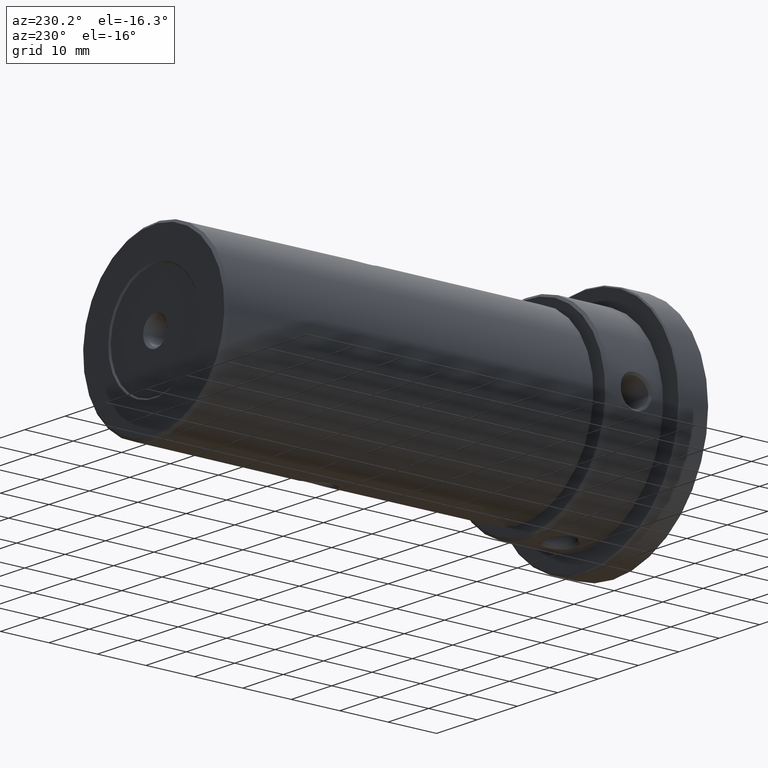
[diagram: clean part render]
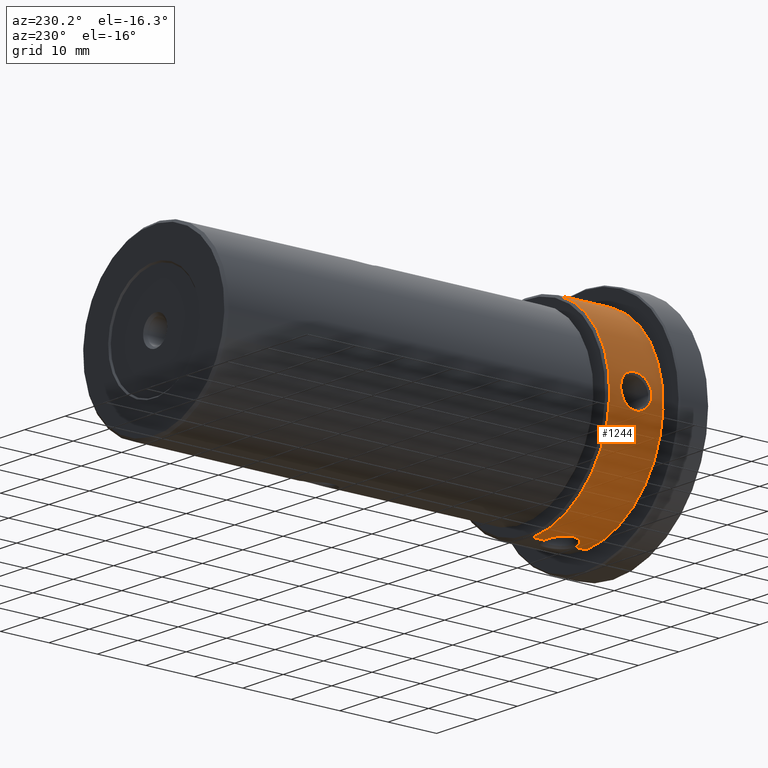
[diagram: same view with one face highlighted and labeled with its STEP entity id]
A machine part, auxiliary view. The second image highlights one B-rep face of the part: STEP entity #1244.
In plain terms, the highlighted cylindrical surface (partial cylindrical patch) has radius 20 mm, axis along (-0, -1, 0).
Its self-contained STEP definition (entity closure, byte-faithful):
#21 = VERTEX_POINT ( 'NONE', #7841 ) ;
#43 = DIRECTION ( 'NONE',  ( -0.000000000000000000, -1.000000000000000000, -0.000000000000000000 ) ) ;
#46 = CARTESIAN_POINT ( 'NONE',  ( -1.158678657098529685, 3.006006604724103859, 19.96665519058064930 ) ) ;
#146 = CARTESIAN_POINT ( 'NONE',  ( -19.72870111304542462, 0.2056933735624228432, 3.283040120788532690 ) ) ;
#206 = CARTESIAN_POINT ( 'NONE',  ( -19.98541069512018353, 3.126736363203132196, 0.8608556256249703109 ) ) ;
#352 = CARTESIAN_POINT ( 'NONE',  ( -2.005386497175610572, -2.550789772819477719, -19.90001605255461214 ) ) ;
#471 = CARTESIAN_POINT ( 'NONE',  ( -19.77523605626856451, -1.329136503091838728, 2.990279165139892559 ) ) ;
#585 = CARTESIAN_POINT ( 'NONE',  ( -19.80499380801463971, -1.700448300313925243, 2.786727627169693911 ) ) ;
#627 = LINE ( 'NONE', #11676, #8683 ) ;
#829 = CARTESIAN_POINT ( 'NONE',  ( -19.99645140533944598, -3.189857657494025389, -0.4317793585944070256 ) ) ;
#868 = EDGE_CURVE ( 'NONE', #3960, #5688, #4130, .T. ) ;
#887 = CARTESIAN_POINT ( 'NONE',  ( -0.4289355146931013163, -3.190274870758774473, 19.99652120331825955 ) ) ;
#894 = CARTESIAN_POINT ( 'NONE',  ( -19.97223225383176981, -3.041136860663240515, -1.058605149291530489 ) ) ;
#962 = B_SPLINE_CURVE_WITH_KNOTS ( 'NONE', 3,
 ( #9366, #9121, #887, #6588, #5482, #4444, #4563, #11257, #1683, #4623, #11196, #2848, #11070, #9243, #5606, #10343 ),
 .UNSPECIFIED., .F., .F.,
 ( 4, 2, 2, 2, 2, 2, 2, 4 ),
 ( 0.2499708488329155376, 0.2812244927288010676, 0.3124781366246866532, 0.3437317805205721832, 0.3749854244164577688, 0.4062390683123432988, 0.4374927122082288289, 0.5000000000000000000 ),
 .UNSPECIFIED. ) ;
#970 = CARTESIAN_POINT ( 'NONE',  ( -1.643899664702022534, 2.787212069719789742, 19.93313604044739762 ) ) ;
#1007 = CARTESIAN_POINT ( 'NONE',  ( -19.72873467711491458, 0.2111624718507606191, -3.282838412106752202 ) ) ;
#1066 = CARTESIAN_POINT ( 'NONE',  ( -19.84719939977778580, 2.122882297813984742, -2.472256534739587064 ) ) ;
#1090 = CARTESIAN_POINT ( 'NONE',  ( -3.177027728197483913, 0.8353448745015051857, -19.74609608644560765 ) ) ;
#1130 = CARTESIAN_POINT ( 'NONE',  ( -19.93262397682579845, 2.781731480877083662, 1.643053472561138983 ) ) ;
#1154 = CARTESIAN_POINT ( 'NONE',  ( -0.7462050190063407307, 3.128526936282405302, 19.98635200496235953 ) ) ;
#1177 = CARTESIAN_POINT ( 'NONE',  ( 2.528436336588759464E-13, 3.210814769336804542, 20.00000000172522263 ) ) ;
#1214 = CARTESIAN_POINT ( 'NONE',  ( -0.2157311954545949872, 3.210814377698899325, -20.00000000000000711 ) ) ;
#1244 = ADVANCED_FACE ( 'NONE', ( #6016, #4178 ), #6831, .T. ) ;
#1274 = CARTESIAN_POINT ( 'NONE',  ( -2.473904711845426263, 2.121122430217057264, -19.84699809542612314 ) ) ;
#1333 = CARTESIAN_POINT ( 'NONE',  ( -2.003044647226584374, 2.552492708573026459, -19.90024663969310481 ) ) ;
#1360 = EDGE_LOOP ( 'NONE', ( #7401, #10213 ) ) ;
#1395 = CARTESIAN_POINT ( 'NONE',  ( -19.72880273281258923, -0.4221556516176297458, 3.282429420431459910 ) ) ;
#1396 = EDGE_CURVE ( 'NONE', #21, #5086, #9201, .T. ) ;
#1495 = ORIENTED_EDGE ( 'NONE', *, *, #1612, .T. ) ;
#1550 = CARTESIAN_POINT ( 'NONE',  ( 0.000000000000000000, 5.499999999999996447, -20.00000000000000000 ) ) ;
#1612 = EDGE_CURVE ( 'NONE', #9495, #8500, #4493, .T. ) ;
#1631 = CARTESIAN_POINT ( 'NONE',  ( -19.79390807436707789, -1.616698761352463931, -2.868590979478604641 ) ) ;
#1678 = CARTESIAN_POINT ( 'NONE',  ( -3.282836554002883656, 0.003589634830924833681, 19.72873498630113076 ) ) ;
#1683 = CARTESIAN_POINT ( 'NONE',  ( -2.169019926329547321, -2.419216049442036276, 19.88261984067980492 ) ) ;
#1870 = CARTESIAN_POINT ( 'NONE',  ( -19.72873461293177755, -0.2098033368892135708, -3.282838797825419874 ) ) ;
#1883 = CARTESIAN_POINT ( 'NONE',  ( -2.472033385874992550, 2.123040080503999949, 19.84722224773671684 ) ) ;
#1974 = ORIENTED_EDGE ( 'NONE', *, *, #11302, .T. ) ;
#1984 = CARTESIAN_POINT ( 'NONE',  ( -19.78157231066153088, 1.426556753777337150, 2.948973793163839119 ) ) ;
#2012 = CARTESIAN_POINT ( 'NONE',  ( -3.178086759260852823, -0.8318619006416451134, -19.74592549026953847 ) ) ;
#2023 = DIRECTION ( 'NONE',  ( 0.000000000000000000, 0.000000000000000000, 1.000000000000000000 ) ) ;
#2044 = CARTESIAN_POINT ( 'NONE',  ( -19.72873498630114142, -0.003589634830928299658, 3.282836554002841911 ) ) ;
#2070 = CARTESIAN_POINT ( 'NONE',  ( -0.8548172235046693768, -3.107221392428660689, -19.98284456748056925 ) ) ;
#2082 = DIRECTION ( 'NONE',  ( -0.000000000000000000, 1.000000000000000000, -0.000000000000000000 ) ) ;
#2102 = CARTESIAN_POINT ( 'NONE',  ( -19.82937915709381116, 1.959213789484572255, -2.609622977981755021 ) ) ;
#2127 = CARTESIAN_POINT ( 'NONE',  ( -3.282951769846691903, -0.2096741267826929822, -19.72871581452127643 ) ) ;
#2139 = EDGE_CURVE ( 'NONE', #21, #7084, #5690, .T. ) ;
#2380 = VERTEX_POINT ( 'NONE', #11396 ) ;
#2558 = CARTESIAN_POINT ( 'NONE',  ( -19.98211626822888931, -3.102615619013571191, -0.8519011128570723734 ) ) ;
#2677 = CARTESIAN_POINT ( 'NONE',  ( -19.76241098728505463, -1.132063641271321863, -3.073896169544034773 ) ) ;
#2794 = CARTESIAN_POINT ( 'NONE',  ( -19.94793521833227601, -2.885495965592914658, 1.456004418445208115 ) ) ;
#2843 = CARTESIAN_POINT ( 'NONE',  ( -19.73237162064967620, 0.4235559177282980925, -3.261183320116648687 ) ) ;
#2848 = CARTESIAN_POINT ( 'NONE',  ( -2.848717079647677508, -1.609521469722601683, 19.79644808863714545 ) ) ;
#2992 = CARTESIAN_POINT ( 'NONE',  ( -0.8493519092969397111, 3.103293778019093896, 19.98222539444758894 ) ) ;
#3006 = CARTESIAN_POINT ( 'NONE',  ( -19.72873498630114142, -0.003589634830928299658, 3.282836554002841911 ) ) ;
#3024 = CARTESIAN_POINT ( 'NONE',  ( -19.94805301913826767, 2.886255173708564659, -1.454135040344656238 ) ) ;
#3105 = EDGE_CURVE ( 'NONE', #3578, #7340, #962, .T. ) ;
#3106 = CARTESIAN_POINT ( 'NONE',  ( -1.735818371137300531, 2.727269810196779609, -19.92473175797537621 ) ) ;
#3166 = CARTESIAN_POINT ( 'NONE',  ( -2.172961773870679014, -2.415835170282897071, -19.88218718433242316 ) ) ;
#3180 = CARTESIAN_POINT ( 'NONE',  ( 0.000000000000000000, 5.499999999999996447, 0.000000000000000000 ) ) ;
#3223 = CARTESIAN_POINT ( 'NONE',  ( -0.2161508172474879974, 3.210814277818609952, 20.00000000000001066 ) ) ;
#3230 = LINE ( 'NONE', #11461, #10147 ) ;
#3578 = VERTEX_POINT ( 'NONE', #11674 ) ;
#3580 = CARTESIAN_POINT ( 'NONE',  ( -19.82964123136623513, -1.961760263111397506, 2.607652401954195565 ) ) ;
#3641 = CARTESIAN_POINT ( 'NONE',  ( -19.90008765280001413, -2.551345600791037338, -2.004736211117988720 ) ) ;
#3653 = CARTESIAN_POINT ( 'NONE',  ( -2.847679392390946695, 1.611409293290192890, 19.79660170210748404 ) ) ;
#3756 = CARTESIAN_POINT ( 'NONE',  ( -19.98286610281969544, 3.107354172728777453, -0.8544976948430212937 ) ) ;
#3779 = CARTESIAN_POINT ( 'NONE',  ( -1.056291764045962145, 3.041903122886042254, 19.97235534656693545 ) ) ;
#3939 = CARTESIAN_POINT ( 'NONE',  ( -19.92468484549490171, 2.726941661166282227, 1.736354336784729391 ) ) ;
#3960 = VERTEX_POINT ( 'NONE', #3006 ) ;
#3966 = CARTESIAN_POINT ( 'NONE',  ( -0.4317656602988742542, -3.189910101814636967, -19.99645888421934004 ) ) ;
#4130 = B_SPLINE_CURVE_WITH_KNOTS ( 'NONE', 3,
 ( #6106, #1395, #8885, #471, #5250, #11811, #585, #3580, #10960, #11931, #9312, #7220, #2794, #6288, #6407, #9249, #829, #10169, #2558, #894, #5550, #7470, #10054, #3641, #4694, #7342, #1631, #2677, #4452, #5371, #11076, #10227, #1870, #9187 ),
 .UNSPECIFIED., .F., .F.,
 ( 4, 2, 2, 2, 2, 2, 2, 2, 2, 2, 2, 2, 2, 2, 2, 2, 4 ),
 ( 0.5000000000000000000, 0.5624999999999998890, 0.5781249999999997780, 0.5937499999999997780, 0.6249999999999997780, 0.6562499999999998890, 0.6874999999999998890, 0.7500000000000000000, 0.7812500000000000000, 0.7968750000000000000, 0.8125000000000000000, 0.8437500000000000000, 0.8750000000000000000, 0.9375000000000000000, 0.9531250000000000000, 0.9687500000000000000, 1.000000000000000000 ),
 .UNSPECIFIED. ) ;
#4144 = CARTESIAN_POINT ( 'NONE',  ( -1.063453189124474507, -3.044943168811764522, -19.97269466904537794 ) ) ;
#4178 = FACE_BOUND ( 'NONE', #1360, .T. ) ;
#4444 = CARTESIAN_POINT ( 'NONE',  ( -1.454815775733482752, -2.885942971772348375, 19.94800447265119203 ) ) ;
#4447 = EDGE_CURVE ( 'NONE', #2380, #9495, #7545, .T. ) ;
#4452 = CARTESIAN_POINT ( 'NONE',  ( -19.75678944974790241, -1.034368637843978922, -3.109708313230385990 ) ) ;
#4493 = CIRCLE ( 'NONE', #6055, 20.00000000000000000 ) ;
#4563 = CARTESIAN_POINT ( 'NONE',  ( -1.645415506624138491, -2.786413167082924858, 19.93301667905650376 ) ) ;
#4584 = EDGE_CURVE ( 'NONE', #7340, #7084, #10538, .T. ) ;
#4619 = CARTESIAN_POINT ( 'NONE',  ( -20.00000644627997914, 3.210849722074992307, -0.2137411082782307292 ) ) ;
#4623 = CARTESIAN_POINT ( 'NONE',  ( -2.471718675475199856, -2.123415629002887162, 19.84726242984446998 ) ) ;
#4639 = CARTESIAN_POINT ( 'NONE',  ( 2.449293598294706513E-15, 6.000000000000000000, 20.00000000000000000 ) ) ;
#4694 = CARTESIAN_POINT ( 'NONE',  ( -19.88230362061188217, -2.416732346344130811, -2.171894010933923980 ) ) ;
#4746 = CARTESIAN_POINT ( 'NONE',  ( -19.95420609216780150, 2.925860746797480427, 1.356287689833137300 ) ) ;
#4806 = CARTESIAN_POINT ( 'NONE',  ( -19.94740817882772532, 2.881321743136513458, 1.452594321365257679 ) ) ;
#4831 = CARTESIAN_POINT ( 'NONE',  ( -1.454321303977383684, 2.880494184385846701, -19.94728285857307881 ) ) ;
#4865 = CARTESIAN_POINT ( 'NONE',  ( -19.97296534795573208, 3.046616977456645614, -1.058292577347704322 ) ) ;
#4890 = CARTESIAN_POINT ( 'NONE',  ( -0.4304629198743657459, 3.190009224402950316, 19.99647607107877789 ) ) ;
#4948 = CARTESIAN_POINT ( 'NONE',  ( -2.475072919235656421, -2.119654999187190469, -19.84684217068302914 ) ) ;
#4959 = B_SPLINE_CURVE_WITH_KNOTS ( 'NONE', 3,
 ( #8077, #1007, #2843, #6516, #9361, #5786, #9604, #2102, #1066, #6582, #8503, #9544, #3024, #4865, #3756, #11429, #4619, #10276, #206, #4746, #4806, #1130, #3939, #8376, #8623, #9425, #8559, #10514, #1984, #10338, #6712, #11191, #146, #2044 ),
 .UNSPECIFIED., .F., .F.,
 ( 4, 2, 2, 2, 2, 2, 2, 2, 2, 2, 2, 2, 2, 2, 2, 2, 4 ),
 ( 0.000000000000000000, 0.03124999999999995143, 0.06249999999999990286, 0.09374999999999986122, 0.1249999999999998057, 0.1562499999999997502, 0.1874999999999997224, 0.2187499999999997224, 0.2499999999999997224, 0.3124999999999996669, 0.3281249999999997224, 0.3437499999999996669, 0.3749999999999997224, 0.4062499999999998335, 0.4374999999999998890, 0.4687499999999999445, 0.5000000000000000000 ),
 .UNSPECIFIED. ) ;
#5010 = CARTESIAN_POINT ( 'NONE',  ( -3.240113370310231833, 0.5268901165830771616, -19.73580804800645438 ) ) ;
#5069 = CARTESIAN_POINT ( 'NONE',  ( -2.847213650360155057, 1.611894744925568501, -19.79666038103761494 ) ) ;
#5086 = VERTEX_POINT ( 'NONE', #1550 ) ;
#5250 = CARTESIAN_POINT ( 'NONE',  ( -19.78209360916186554, -1.423154493285935906, 2.944728968417123838 ) ) ;
#5371 = CARTESIAN_POINT ( 'NONE',  ( -19.74678119765756890, -0.8317059815842607895, -3.172640459756129516 ) ) ;
#5482 = CARTESIAN_POINT ( 'NONE',  ( -1.058755611226214866, -3.046465704494233151, 19.97294189492203387 ) ) ;
#5550 = CARTESIAN_POINT ( 'NONE',  ( -19.96650705543705229, -3.005061850403551560, -1.161213496109318788 ) ) ;
#5563 = CARTESIAN_POINT ( 'NONE',  ( -2.001950075005967555, 2.553383045454071798, 19.90036468037141049 ) ) ;
#5606 = CARTESIAN_POINT ( 'NONE',  ( -3.283243735051231571, -0.4150251885518185802, 19.72866723188959170 ) ) ;
#5625 = CARTESIAN_POINT ( 'NONE',  ( -2.169590774469934757, 2.418725991896002459, 19.88255657311883695 ) ) ;
#5688 = VERTEX_POINT ( 'NONE', #6945 ) ;
#5690 = LINE ( 'NONE', #4639, #9967 ) ;
#5753 = CARTESIAN_POINT ( 'NONE',  ( -2.951493054370621927, -1.421276429248823803, -19.78119209682132151 ) ) ;
#5782 = CARTESIAN_POINT ( 'NONE',  ( 0.000000000000000000, 6.000000000000000000, 0.000000000000000000 ) ) ;
#5786 = CARTESIAN_POINT ( 'NONE',  ( -19.78145698359135451, 1.425006937884932379, -2.949738235017527188 ) ) ;
#5870 = CARTESIAN_POINT ( 'NONE',  ( -2.850026662224084628, -1.607432073332376810, -19.79626288670249323 ) ) ;
#5899 = DIRECTION ( 'NONE',  ( -0.000000000000000000, -1.000000000000000000, -0.000000000000000000 ) ) ;
#5925 = CARTESIAN_POINT ( 'NONE',  ( -3.256229307588821342, 0.4214790568076811628, -19.73314691802544374 ) ) ;
#5983 = CARTESIAN_POINT ( 'NONE',  ( -1.058531451067987517, 3.046565061365889893, -19.97295893071096984 ) ) ;
#6016 = FACE_OUTER_BOUND ( 'NONE', #7717, .T. ) ;
#6055 = AXIS2_PLACEMENT_3D ( 'NONE', #10496, #2082, #10551 ) ;
#6106 = CARTESIAN_POINT ( 'NONE',  ( -19.72873498630114142, -0.003589634830928299658, 3.282836554002841911 ) ) ;
#6276 = CARTESIAN_POINT ( 'NONE',  ( 0.000000000000000000, -5.500000000000006217, -20.00000000000000000 ) ) ;
#6288 = CARTESIAN_POINT ( 'NONE',  ( -19.98565426600576700, -3.128297963808362336, 0.8566778419787017818 ) ) ;
#6407 = CARTESIAN_POINT ( 'NONE',  ( -20.00004783158570376, -3.211097968232580868, 0.4290358298319180697 ) ) ;
#6516 = CARTESIAN_POINT ( 'NONE',  ( -19.74605402600659687, 0.8343868422039106836, -3.177287652205260216 ) ) ;
#6582 = CARTESIAN_POINT ( 'NONE',  ( -19.88267671503622225, 2.419697900833119419, -2.168534766486040155 ) ) ;
#6588 = CARTESIAN_POINT ( 'NONE',  ( -0.8522552653627986086, -3.107908260091315711, 19.98295540887740884 ) ) ;
#6680 = CARTESIAN_POINT ( 'NONE',  ( -3.282781247231202570, 0.1065994962668947860, -19.72874418928248019 ) ) ;
#6712 = CARTESIAN_POINT ( 'NONE',  ( -19.74599425326837476, 0.8335622238433175735, 3.177662765339251294 ) ) ;
#6742 = CARTESIAN_POINT ( 'NONE',  ( -3.262039743590630980, -0.4179469571097891856, -19.73223012302209511 ) ) ;
#6782 = ORIENTED_EDGE ( 'NONE', *, *, #3105, .T. ) ;
#6799 = CARTESIAN_POINT ( 'NONE',  ( -3.115181304869874435, 1.034778177282145606, -19.75607885490965643 ) ) ;
#6806 = DIRECTION ( 'NONE',  ( -0.000000000000000000, -1.000000000000000000, -0.000000000000000000 ) ) ;
#6831 = CYLINDRICAL_SURFACE ( 'NONE', #10951, 20.00000000000000000 ) ;
#6917 = CARTESIAN_POINT ( 'NONE',  ( -2.169137381556429656, 2.419257043399334783, -19.88261504287285319 ) ) ;
#6945 = CARTESIAN_POINT ( 'NONE',  ( -19.72873464491972939, 5.082197683525802034E-17, -3.282838605588759062 ) ) ;
#7002 = ORIENTED_EDGE ( 'NONE', *, *, #4447, .T. ) ;
#7084 = VERTEX_POINT ( 'NONE', #1177 ) ;
#7182 = VECTOR ( 'NONE', #10297, 1000.000000000000000 ) ;
#7220 = CARTESIAN_POINT ( 'NONE',  ( -19.93312469778006957, -2.787099344615420637, 1.643909942856345285 ) ) ;
#7340 = VERTEX_POINT ( 'NONE', #1678 ) ;
#7342 = CARTESIAN_POINT ( 'NONE',  ( -19.82932171882884020, -1.972995465354024702, -2.624973066317353165 ) ) ;
#7401 = ORIENTED_EDGE ( 'NONE', *, *, #7487, .T. ) ;
#7470 = CARTESIAN_POINT ( 'NONE',  ( -19.94777545471344382, -2.884433045962102593, -1.457922330505737829 ) ) ;
#7487 = EDGE_CURVE ( 'NONE', #5688, #3960, #4959, .T. ) ;
#7530 = VERTEX_POINT ( 'NONE', #11376 ) ;
#7545 = LINE ( 'NONE', #11215, #7182 ) ;
#7594 = ORIENTED_EDGE ( 'NONE', *, *, #4584, .T. ) ;
#7674 = CARTESIAN_POINT ( 'NONE',  ( -0.8546834062709159907, 3.107282672630588216, -19.98285351432228296 ) ) ;
#7717 = EDGE_LOOP ( 'NONE', ( #9977, #10154, #1974, #9853, #7002, #1495, #9796, #6782, #7594 ) ) ;
#7734 = CARTESIAN_POINT ( 'NONE',  ( -1.647922219500129293, -2.784927057243421711, -19.93280126458555301 ) ) ;
#7788 = CARTESIAN_POINT ( 'NONE',  ( 2.528436336588759464E-13, 3.210814769336804542, 20.00000000172522263 ) ) ;
#7841 = CARTESIAN_POINT ( 'NONE',  ( 2.449293598294706513E-15, 5.499999999999996447, 20.00000000000000000 ) ) ;
#8077 = CARTESIAN_POINT ( 'NONE',  ( -19.72873464491972939, 5.082197683525802034E-17, -3.282838605588759062 ) ) ;
#8338 = CARTESIAN_POINT ( 'NONE',  ( -3.282429594890635904, 0.4219762900690612328, 19.72880270378280088 ) ) ;
#8376 = CARTESIAN_POINT ( 'NONE',  ( -19.90020613797571158, 2.552190118983589162, 2.003438535801464582 ) ) ;
#8402 = CARTESIAN_POINT ( 'NONE',  ( -3.282836554002883656, 0.003589634830924833681, 19.72873498630113076 ) ) ;
#8467 = CARTESIAN_POINT ( 'NONE',  ( -1.455917222464859773, 2.885416709885729958, 19.94792540494267641 ) ) ;
#8500 = VERTEX_POINT ( 'NONE', #10345 ) ;
#8503 = CARTESIAN_POINT ( 'NONE',  ( -19.90022740704959503, 2.552352788094713887, -2.003269558863657984 ) ) ;
#8559 = CARTESIAN_POINT ( 'NONE',  ( -19.82925945945217450, 1.958047067866057978, 2.610528527949259825 ) ) ;
#8588 = CARTESIAN_POINT ( 'NONE',  ( -2.609557995815894316, 1.959266530942890272, -19.82938715339974323 ) ) ;
#8623 = CARTESIAN_POINT ( 'NONE',  ( -19.88272390286786973, 2.420099909786423531, 2.168143128879855830 ) ) ;
#8650 = CARTESIAN_POINT ( 'NONE',  ( -1.386390959549365907E-14, 3.210814762702384861, -20.00000000000000000 ) ) ;
#8683 = VECTOR ( 'NONE', #9170, 1000.000000000000000 ) ;
#8706 = CARTESIAN_POINT ( 'NONE',  ( -0.2155114385539773636, -3.210815185058498500, -20.00000000000000355 ) ) ;
#8825 = CARTESIAN_POINT ( 'NONE',  ( -3.115370270799765695, -1.033886459029130567, -19.75604565942186852 ) ) ;
#8842 = DIRECTION ( 'NONE',  ( 0.000000000000000000, -1.000000000000000000, 0.000000000000000000 ) ) ;
#8885 = CARTESIAN_POINT ( 'NONE',  ( -19.74370945037773240, -0.8453354926248912715, 3.195876437675758908 ) ) ;
#9121 = CARTESIAN_POINT ( 'NONE',  ( -0.2152588734069053877, -3.210818106283897411, 20.00000000000000355 ) ) ;
#9170 = DIRECTION ( 'NONE',  ( -0.000000000000000000, -1.000000000000000000, -0.000000000000000000 ) ) ;
#9187 = CARTESIAN_POINT ( 'NONE',  ( -19.72873464491972939, 5.082197683525802034E-17, -3.282838605588759062 ) ) ;
#9200 = EDGE_CURVE ( 'NONE', #3578, #8500, #627, .T. ) ;
#9201 = CIRCLE ( 'NONE', #11362, 20.00000000000000000 ) ;
#9243 = CARTESIAN_POINT ( 'NONE',  ( -3.196658197545173774, -0.8431018416383337932, 19.74358522972536889 ) ) ;
#9249 = CARTESIAN_POINT ( 'NONE',  ( -19.99997589873214920, -3.210672054760611793, -0.2178538555592763881 ) ) ;
#9312 = CARTESIAN_POINT ( 'NONE',  ( -19.90058672311920063, -2.554998944908394076, 1.999637015331402701 ) ) ;
#9361 = CARTESIAN_POINT ( 'NONE',  ( -19.75609315249851861, 1.034963573952576210, -3.115088987268344045 ) ) ;
#9366 = CARTESIAN_POINT ( 'NONE',  ( -8.972218760219603006E-14, -3.210814757519488527, 19.99999999999141664 ) ) ;
#9425 = CARTESIAN_POINT ( 'NONE',  ( -19.84710889918838816, 2.122117896554447380, 2.473018958426932201 ) ) ;
#9495 = VERTEX_POINT ( 'NONE', #6276 ) ;
#9544 = CARTESIAN_POINT ( 'NONE',  ( -19.93294059001894425, 2.785867895234459546, -1.646213598696455227 ) ) ;
#9604 = CARTESIAN_POINT ( 'NONE',  ( -19.79662546921035471, 1.611492055952627345, -2.847460249908464913 ) ) ;
#9628 = CARTESIAN_POINT ( 'NONE',  ( -6.033831151956498366E-15, -3.210814758110483336, -19.99999999993138289 ) ) ;
#9751 = CARTESIAN_POINT ( 'NONE',  ( -1.356352007453565101, 2.925845898669065193, -19.95420265387892300 ) ) ;
#9796 = ORIENTED_EDGE ( 'NONE', *, *, #9200, .F. ) ;
#9853 = ORIENTED_EDGE ( 'NONE', *, *, #11641, .T. ) ;
#9967 = VECTOR ( 'NONE', #43, 1000.000000000000000 ) ;
#9977 = ORIENTED_EDGE ( 'NONE', *, *, #2139, .F. ) ;
#10054 = CARTESIAN_POINT ( 'NONE',  ( -19.93297195992941084, -2.786101374374414519, -1.645929740286447229 ) ) ;
#10147 = VECTOR ( 'NONE', #6806, 1000.000000000000000 ) ;
#10154 = ORIENTED_EDGE ( 'NONE', *, *, #1396, .T. ) ;
#10169 = CARTESIAN_POINT ( 'NONE',  ( -19.98628399507160935, -3.128114863111315813, -0.7480492119485051550 ) ) ;
#10213 = ORIENTED_EDGE ( 'NONE', *, *, #868, .T. ) ;
#10227 = CARTESIAN_POINT ( 'NONE',  ( -19.73226488625647690, -0.4191618436438083184, -3.261828024398366388 ) ) ;
#10276 = CARTESIAN_POINT ( 'NONE',  ( -19.99998708022929961, 3.210744681817979007, 0.4292892277898058273 ) ) ;
#10297 = DIRECTION ( 'NONE',  ( -0.000000000000000000, -1.000000000000000000, -0.000000000000000000 ) ) ;
#10338 = CARTESIAN_POINT ( 'NONE',  ( -19.75611551355718021, 1.035529787960895565, 3.114955750838736659 ) ) ;
#10343 = CARTESIAN_POINT ( 'NONE',  ( -3.282836554002883656, 0.003589634830924833681, 19.72873498630113076 ) ) ;
#10345 = CARTESIAN_POINT ( 'NONE',  ( 2.449293598294706513E-15, -5.500000000000006217, 20.00000000000000000 ) ) ;
#10361 = CARTESIAN_POINT ( 'NONE',  ( -2.607319933970073667, 1.962341394562628016, 19.82968985223053693 ) ) ;
#10485 = CARTESIAN_POINT ( 'NONE',  ( -2.610003328609852513, -1.958961813293665477, -19.82933581538899404 ) ) ;
#10496 = CARTESIAN_POINT ( 'NONE',  ( 0.000000000000000000, -5.500000000000006217, 0.000000000000000000 ) ) ;
#10514 = CARTESIAN_POINT ( 'NONE',  ( -19.79651857101796963, 1.610252450311780548, 2.848199847772460380 ) ) ;
#10538 = B_SPLINE_CURVE_WITH_KNOTS ( 'NONE', 3,
 ( #8402, #8338, #11155, #12062, #3653, #10361, #1883, #5625, #5563, #970, #8467, #46, #3779, #2992, #1154, #4890, #3223, #7788 ),
 .UNSPECIFIED., .F., .F.,
 ( 4, 2, 2, 2, 2, 2, 2, 2, 4 ),
 ( 0.5000000000000000000, 0.5624732178757451129, 0.5937098268136177248, 0.6249464357514903368, 0.6561830446893629487, 0.6874196536272355607, 0.7030379580961718666, 0.7186562625651082836, 0.7498928715029808956 ),
 .UNSPECIFIED. ) ;
#10541 = CARTESIAN_POINT ( 'NONE',  ( -2.949709688411791486, 1.425041831352378274, -19.78146149903258788 ) ) ;
#10551 = DIRECTION ( 'NONE',  ( 0.000000000000000000, 0.000000000000000000, 1.000000000000000000 ) ) ;
#10598 = CARTESIAN_POINT ( 'NONE',  ( -1.644993786217168408, 2.780639870281185644, -19.93246445722235904 ) ) ;
#10659 = CARTESIAN_POINT ( 'NONE',  ( -0.4310236729923728749, 3.190020017193234469, -19.99647811223610461 ) ) ;
#10691 = DIRECTION ( 'NONE',  ( 0.000000000000000000, 0.000000000000000000, -1.000000000000000000 ) ) ;
#10951 = AXIS2_PLACEMENT_3D ( 'NONE', #5782, #5899, #10691 ) ;
#10960 = CARTESIAN_POINT ( 'NONE',  ( -19.84720313148995174, -2.122928777580050053, 2.472248606060468923 ) ) ;
#11070 = CARTESIAN_POINT ( 'NONE',  ( -2.949531625619231878, -1.425217596148195431, 19.78148650957031407 ) ) ;
#11076 = CARTESIAN_POINT ( 'NONE',  ( -19.74250960291361423, -0.7285416292321977849, -3.199025551538938306 ) ) ;
#11155 = CARTESIAN_POINT ( 'NONE',  ( -3.196098537901221004, 0.8446298263228197989, 19.74367359006963696 ) ) ;
#11191 = CARTESIAN_POINT ( 'NONE',  ( -19.73222121862119849, 0.4180549159145231508, 3.262096791900364057 ) ) ;
#11196 = CARTESIAN_POINT ( 'NONE',  ( -2.609760566749887989, -1.959144924210752592, 19.82936448074468316 ) ) ;
#11215 = CARTESIAN_POINT ( 'NONE',  ( 0.000000000000000000, 6.000000000000000000, -20.00000000000000000 ) ) ;
#11257 = CARTESIAN_POINT ( 'NONE',  ( -2.004720944628259449, -2.551380204882780500, 19.90009145836151916 ) ) ;
#11302 = EDGE_CURVE ( 'NONE', #5086, #7530, #3230, .T. ) ;
#11362 = AXIS2_PLACEMENT_3D ( 'NONE', #3180, #8842, #2023 ) ;
#11376 = CARTESIAN_POINT ( 'NONE',  ( -1.386390959549365907E-14, 3.210814762702384861, -20.00000000000000000 ) ) ;
#11396 = CARTESIAN_POINT ( 'NONE',  ( -6.033831151956498366E-15, -3.210814758110483336, -19.99999999993138289 ) ) ;
#11401 = CARTESIAN_POINT ( 'NONE',  ( -3.277534814147170739, 0.2108986537689472585, -19.72961941178873602 ) ) ;
#11429 = CARTESIAN_POINT ( 'NONE',  ( -19.99650559591002263, 3.190191882897257969, -0.4299627268165850946 ) ) ;
#11457 = CARTESIAN_POINT ( 'NONE',  ( -1.459977916460850178, -2.883459632346880852, -19.94762967151284272 ) ) ;
#11461 = CARTESIAN_POINT ( 'NONE',  ( 0.000000000000000000, 6.000000000000000000, -20.00000000000000000 ) ) ;
#11641 = EDGE_CURVE ( 'NONE', #7530, #2380, #11843, .T. ) ;
#11674 = CARTESIAN_POINT ( 'NONE',  ( -8.972218760219603006E-14, -3.210814757519488527, 19.99999999999141664 ) ) ;
#11676 = CARTESIAN_POINT ( 'NONE',  ( 2.449293598294706513E-15, 6.000000000000000000, 20.00000000000000000 ) ) ;
#11811 = CARTESIAN_POINT ( 'NONE',  ( -19.79700758994709986, -1.609364465969802982, 2.842735784883020589 ) ) ;
#11843 = B_SPLINE_CURVE_WITH_KNOTS ( 'NONE', 3,
 ( #8650, #1214, #10659, #7674, #5983, #9751, #4831, #10598, #3106, #1333, #6917, #1274, #8588, #5069, #10541, #6799, #1090, #5010, #5925, #11401, #6680, #2127, #6742, #2012, #8825, #5753, #5870, #10485, #4948, #3166, #352, #7734, #11457, #4144, #2070, #3966, #8706, #9628 ),
 .UNSPECIFIED., .F., .F.,
 ( 4, 2, 2, 2, 2, 2, 2, 2, 2, 2, 2, 2, 2, 2, 2, 2, 2, 2, 4 ),
 ( 0.000000000000000000, 0.03123903274536131078, 0.06247806549072262156, 0.07809758186340325092, 0.09371709823608387335, 0.1249561309814451598, 0.1561951637268064463, 0.1874341964721676912, 0.2186732292175289638, 0.2342927455902095724, 0.2499122619628902087, 0.2811512947082514535, 0.3123903274536127261, 0.3436293601989739432, 0.3748683929443352714, 0.4061074256896965440, 0.4373464584350579276, 0.4685854911804192002, 0.4998245239257805284 ),
 .UNSPECIFIED. ) ;
#11931 = CARTESIAN_POINT ( 'NONE',  ( -19.88275746358215557, -2.420358174547778685, 2.167819401417125036 ) ) ;
#12062 = CARTESIAN_POINT ( 'NONE',  ( -2.949366047076787734, 1.425502504053299813, 19.78151063731351300 ) ) ;